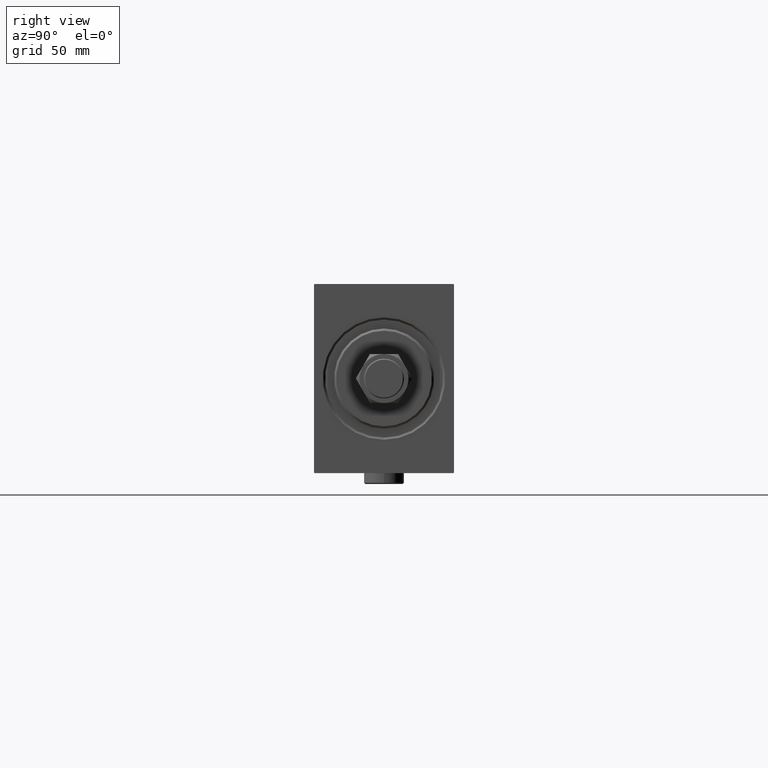
[diagram: clean part render]
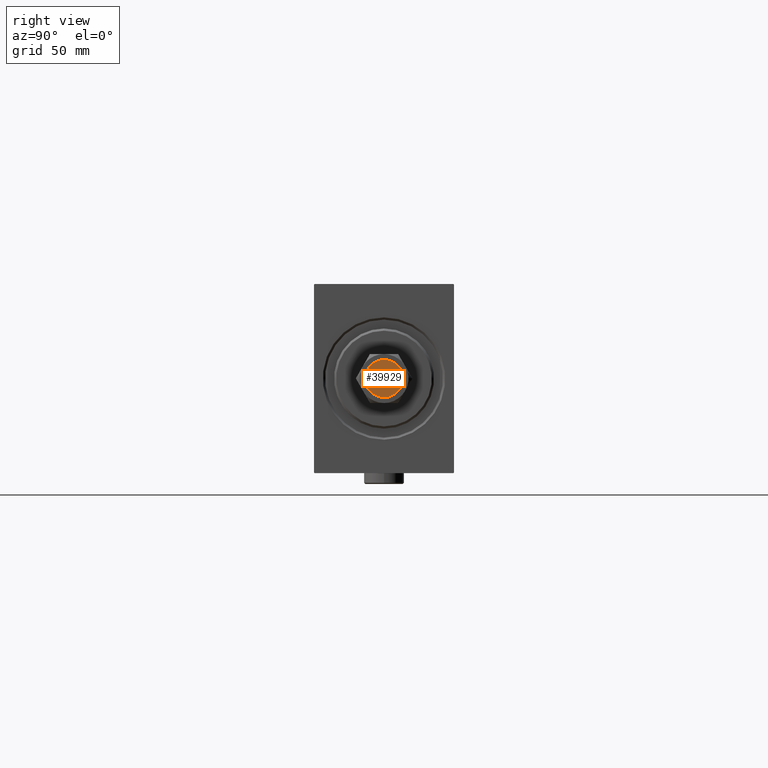
[diagram: same view with one face highlighted and labeled with its STEP entity id]
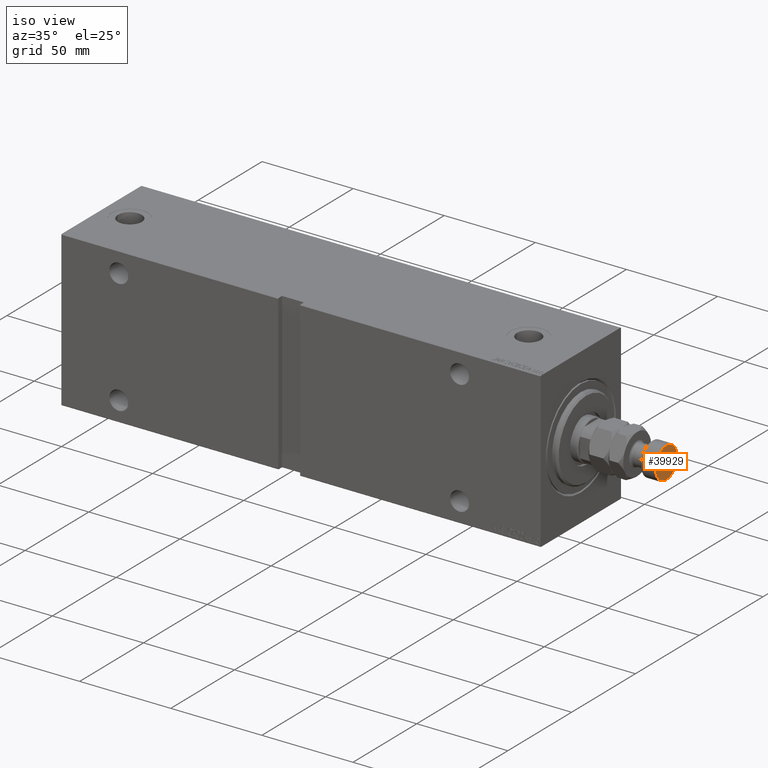
[diagram: same view with one face highlighted and labeled with its STEP entity id]
A machine part, right view. The second image highlights one B-rep face of the part: STEP entity #39929.
A second angle (iso view) of the same face is appended — the face is thin or edge-on in the first view.
In plain terms, the highlighted planar face has unit normal (1, 0, -0).
Its self-contained STEP definition (entity closure, byte-faithful):
#771 = DIRECTION ( 'NONE',  ( 1.000000000000000000, 0.000000000000000000, 0.000000000000000000 ) ) ;
#3249 = CARTESIAN_POINT ( 'NONE',  ( 0.000000000000000000, 0.000000000000000000, 35.00000000000000000 ) ) ;
#3485 = DIRECTION ( 'NONE',  ( 0.000000000000000000, 0.000000000000000000, 1.000000000000000000 ) ) ;
#7818 = CARTESIAN_POINT ( 'NONE',  ( 0.000000000000000000, 0.000000000000000000, 35.00000000000000000 ) ) ;
#8449 = DIRECTION ( 'NONE',  ( 0.000000000000000000, 0.000000000000000000, 1.000000000000000000 ) ) ;
#11284 = AXIS2_PLACEMENT_3D ( 'NONE', #19123, #8449, #771 ) ;
#15359 = CARTESIAN_POINT ( 'NONE',  ( -8.499999999999992895, 0.000000000000000000, 35.00000000000000000 ) ) ;
#16423 = AXIS2_PLACEMENT_3D ( 'NONE', #3249, #3485, #28629 ) ;
#17288 = CARTESIAN_POINT ( 'NONE',  ( 8.499999999999992895, 1.071565949253933532E-15, 35.00000000000000000 ) ) ;
#18117 = FACE_OUTER_BOUND ( 'NONE', #29225, .T. ) ;
#19123 = CARTESIAN_POINT ( 'NONE',  ( 0.000000000000000000, 0.000000000000000000, 35.00000000000000000 ) ) ;
#22458 = DIRECTION ( 'NONE',  ( 0.000000000000000000, 0.000000000000000000, 1.000000000000000000 ) ) ;
#27648 = CIRCLE ( 'NONE', #11284, 8.499999999999992895 ) ;
#28500 = EDGE_CURVE ( 'NONE', #45882, #31517, #45847, .T. ) ;
#28629 = DIRECTION ( 'NONE',  ( 1.000000000000000000, 0.000000000000000000, -0.000000000000000000 ) ) ;
#29225 = EDGE_LOOP ( 'NONE', ( #33396, #45706 ) ) ;
#31517 = VERTEX_POINT ( 'NONE', #15359 ) ;
#33396 = ORIENTED_EDGE ( 'NONE', *, *, #45922, .T. ) ;
#34703 = AXIS2_PLACEMENT_3D ( 'NONE', #7818, #22458, #35112 ) ;
#35112 = DIRECTION ( 'NONE',  ( 1.000000000000000000, 0.000000000000000000, 0.000000000000000000 ) ) ;
#35145 = PLANE ( 'NONE',  #16423 ) ;
#39929 = ADVANCED_FACE ( 'NONE', ( #18117 ), #35145, .T. ) ;
#45706 = ORIENTED_EDGE ( 'NONE', *, *, #28500, .T. ) ;
#45847 = CIRCLE ( 'NONE', #34703, 8.499999999999992895 ) ;
#45882 = VERTEX_POINT ( 'NONE', #17288 ) ;
#45922 = EDGE_CURVE ( 'NONE', #31517, #45882, #27648, .T. ) ;